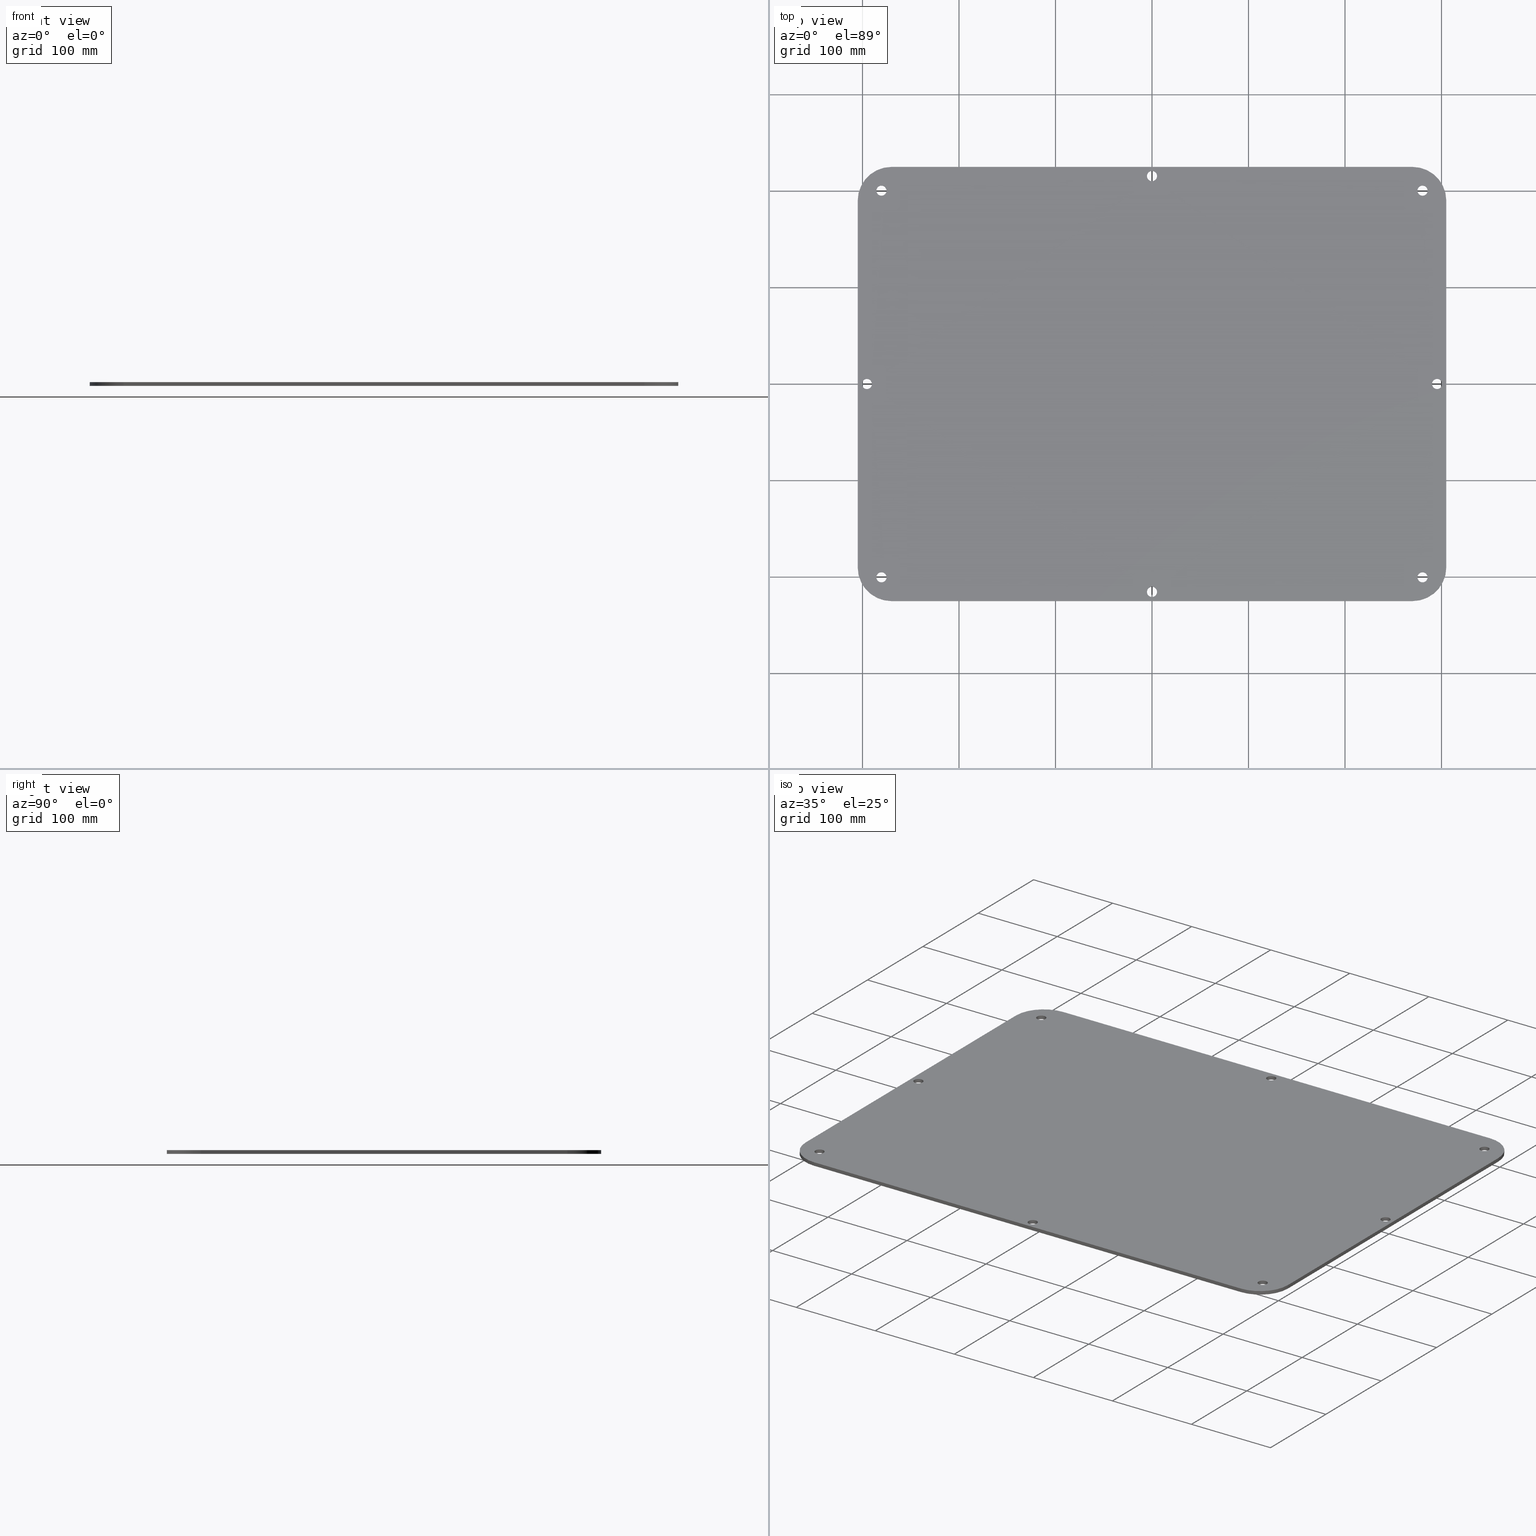
[diagram: canonical four-view strip — front | top / right | iso, engineering-drawing reading convention]
A machine part, canonical four-view strip (front | top / right | iso — engineering-drawing reading convention). The complete STEP part file that produces these views, byte-faithful:
ISO-10303-21;
HEADER;
/* Generated by software containing ST-Developer
 * from STEP Tools, Inc. (www.steptools.com) 
 */
/* OPTION: using custom schema-name function */

FILE_DESCRIPTION(
/* description */ (''),
/* implementation_level */ '2;1');

FILE_NAME(
/* name */ '70000',
/* time_stamp */ '2016-04-15T17:51:46+03:00',
/* author */ (''),
/* organization */ (''),
/* preprocessor_version */ 'ST-DEVELOPER v9',
/* originating_system */ 'UGS - NX 4.0',
/* authorisation */ '');

FILE_SCHEMA (('AUTOMOTIVE_DESIGN { 1 0 10303 214 1 1 1 1 }'));
ENDSEC;

DATA;
#10=SHAPE_REPRESENTATION_RELATIONSHIP('None',
'relationship between Form8D2Eoemi-None and Form8D2Eoemi-None',#22,#11);
#11=ADVANCED_BREP_SHAPE_REPRESENTATION('Form8D2Eoemi-None',(#32),#599);
#12=SHAPE_DEFINITION_REPRESENTATION(#13,#22);
#13=PRODUCT_DEFINITION_SHAPE('','',#14);
#14=PRODUCT_DEFINITION(' ','',#16,#15);
#15=PRODUCT_DEFINITION_CONTEXT('part definition',#21,'design');
#16=PRODUCT_DEFINITION_FORMATION_WITH_SPECIFIED_SOURCE(' ',' ',#18,.NOT_KNOWN.);
#17=PRODUCT_RELATED_PRODUCT_CATEGORY('part','',(#18));
#18=PRODUCT('Form8D2Eoemi','Form8D2Eoemi',' ',(#19));
#19=PRODUCT_CONTEXT(' ',#21,'mechanical');
#20=APPLICATION_PROTOCOL_DEFINITION('international standard',
'automotive_design',2001,#21);
#21=APPLICATION_CONTEXT(
'core data for automotive mechanical design processes');
#22=SHAPE_REPRESENTATION('Form8D2Eoemi-None',(#362),#599);
#23=PRESENTATION_LAYER_ASSIGNMENT('251','Layer 251',(#32));
#24=STYLED_ITEM('',(#25),#32);
#25=PRESENTATION_STYLE_ASSIGNMENT((#26));
#26=SURFACE_STYLE_USAGE(.BOTH.,#27);
#27=SURFACE_SIDE_STYLE('',(#28));
#28=SURFACE_STYLE_FILL_AREA(#29);
#29=FILL_AREA_STYLE('',(#30));
#30=FILL_AREA_STYLE_COLOUR('',#31);
#31=COLOUR_RGB('Light Gray',0.6,0.6,0.6);
#32=MANIFOLD_SOLID_BREP('',#33);
#33=CLOSED_SHELL('',(#72,#73,#74,#75,#76,#77,#78,#79,#80,#81,#82,#83,#84,
#85,#86,#87,#88,#89));
#34=FACE_BOUND('',#119,.T.);
#35=FACE_BOUND('',#120,.T.);
#36=FACE_BOUND('',#121,.T.);
#37=FACE_BOUND('',#122,.T.);
#38=FACE_BOUND('',#123,.T.);
#39=FACE_BOUND('',#124,.T.);
#40=FACE_BOUND('',#125,.T.);
#41=FACE_BOUND('',#126,.T.);
#42=FACE_BOUND('',#127,.T.);
#43=FACE_BOUND('',#128,.T.);
#44=FACE_BOUND('',#129,.T.);
#45=FACE_BOUND('',#130,.T.);
#46=FACE_BOUND('',#131,.T.);
#47=FACE_BOUND('',#132,.T.);
#48=FACE_BOUND('',#134,.T.);
#49=FACE_BOUND('',#135,.T.);
#50=FACE_BOUND('',#137,.T.);
#51=FACE_BOUND('',#138,.T.);
#52=FACE_BOUND('',#139,.T.);
#53=FACE_BOUND('',#140,.T.);
#54=FACE_BOUND('',#141,.T.);
#55=FACE_BOUND('',#142,.T.);
#56=FACE_BOUND('',#143,.T.);
#57=FACE_BOUND('',#144,.T.);
#58=FACE_BOUND('',#146,.T.);
#59=FACE_BOUND('',#147,.T.);
#60=FACE_BOUND('',#148,.T.);
#61=FACE_BOUND('',#149,.T.);
#62=FACE_BOUND('',#150,.T.);
#63=FACE_BOUND('',#151,.T.);
#64=FACE_BOUND('',#152,.T.);
#65=FACE_BOUND('',#153,.T.);
#66=PLANE('',#366);
#67=PLANE('',#370);
#68=PLANE('',#374);
#69=PLANE('',#399);
#70=PLANE('',#403);
#71=PLANE('',#404);
#72=ADVANCED_FACE('',(#102),#90,.T.);
#73=ADVANCED_FACE('',(#103),#66,.F.);
#74=ADVANCED_FACE('',(#104),#91,.T.);
#75=ADVANCED_FACE('',(#105),#67,.F.);
#76=ADVANCED_FACE('',(#106),#92,.T.);
#77=ADVANCED_FACE('',(#107),#68,.F.);
#78=ADVANCED_FACE('',(#108),#93,.T.);
#79=ADVANCED_FACE('',(#34,#35),#94,.F.);
#80=ADVANCED_FACE('',(#36,#37),#95,.F.);
#81=ADVANCED_FACE('',(#38,#39),#96,.F.);
#82=ADVANCED_FACE('',(#40,#41),#97,.F.);
#83=ADVANCED_FACE('',(#42,#43),#98,.F.);
#84=ADVANCED_FACE('',(#44,#45),#99,.F.);
#85=ADVANCED_FACE('',(#46,#47),#100,.F.);
#86=ADVANCED_FACE('',(#109),#69,.F.);
#87=ADVANCED_FACE('',(#48,#49),#101,.F.);
#88=ADVANCED_FACE('',(#110,#50,#51,#52,#53,#54,#55,#56,#57),#70,.T.);
#89=ADVANCED_FACE('',(#111,#58,#59,#60,#61,#62,#63,#64,#65),#71,.F.);
#90=CYLINDRICAL_SURFACE('',#365,35.);
#91=CYLINDRICAL_SURFACE('',#369,35.);
#92=CYLINDRICAL_SURFACE('',#373,35.);
#93=CYLINDRICAL_SURFACE('',#377,35.);
#94=CYLINDRICAL_SURFACE('',#380,5.25);
#95=CYLINDRICAL_SURFACE('',#383,5.25);
#96=CYLINDRICAL_SURFACE('',#386,5.25);
#97=CYLINDRICAL_SURFACE('',#389,5.25);
#98=CYLINDRICAL_SURFACE('',#392,5.25);
#99=CYLINDRICAL_SURFACE('',#395,5.25);
#100=CYLINDRICAL_SURFACE('',#398,5.25);
#101=CYLINDRICAL_SURFACE('',#402,5.25);
#102=FACE_OUTER_BOUND('',#112,.T.);
#103=FACE_OUTER_BOUND('',#113,.T.);
#104=FACE_OUTER_BOUND('',#114,.T.);
#105=FACE_OUTER_BOUND('',#115,.T.);
#106=FACE_OUTER_BOUND('',#116,.T.);
#107=FACE_OUTER_BOUND('',#117,.T.);
#108=FACE_OUTER_BOUND('',#118,.T.);
#109=FACE_OUTER_BOUND('',#133,.T.);
#110=FACE_OUTER_BOUND('',#136,.T.);
#111=FACE_OUTER_BOUND('',#145,.T.);
#112=EDGE_LOOP('',(#186,#187,#188,#189));
#113=EDGE_LOOP('',(#190,#191,#192,#193));
#114=EDGE_LOOP('',(#194,#195,#196,#197));
#115=EDGE_LOOP('',(#198,#199,#200,#201));
#116=EDGE_LOOP('',(#202,#203,#204,#205));
#117=EDGE_LOOP('',(#206,#207,#208,#209));
#118=EDGE_LOOP('',(#210,#211,#212,#213));
#119=EDGE_LOOP('',(#214));
#120=EDGE_LOOP('',(#215));
#121=EDGE_LOOP('',(#216));
#122=EDGE_LOOP('',(#217));
#123=EDGE_LOOP('',(#218));
#124=EDGE_LOOP('',(#219));
#125=EDGE_LOOP('',(#220));
#126=EDGE_LOOP('',(#221));
#127=EDGE_LOOP('',(#222));
#128=EDGE_LOOP('',(#223));
#129=EDGE_LOOP('',(#224));
#130=EDGE_LOOP('',(#225));
#131=EDGE_LOOP('',(#226));
#132=EDGE_LOOP('',(#227));
#133=EDGE_LOOP('',(#228,#229,#230,#231));
#134=EDGE_LOOP('',(#232));
#135=EDGE_LOOP('',(#233));
#136=EDGE_LOOP('',(#234,#235,#236,#237,#238,#239,#240,#241));
#137=EDGE_LOOP('',(#242));
#138=EDGE_LOOP('',(#243));
#139=EDGE_LOOP('',(#244));
#140=EDGE_LOOP('',(#245));
#141=EDGE_LOOP('',(#246));
#142=EDGE_LOOP('',(#247));
#143=EDGE_LOOP('',(#248));
#144=EDGE_LOOP('',(#249));
#145=EDGE_LOOP('',(#250,#251,#252,#253,#254,#255,#256,#257));
#146=EDGE_LOOP('',(#258));
#147=EDGE_LOOP('',(#259));
#148=EDGE_LOOP('',(#260));
#149=EDGE_LOOP('',(#261));
#150=EDGE_LOOP('',(#262));
#151=EDGE_LOOP('',(#263));
#152=EDGE_LOOP('',(#264));
#153=EDGE_LOOP('',(#265));
#154=LINE('',#511,#170);
#155=LINE('',#515,#171);
#156=LINE('',#517,#172);
#157=LINE('',#519,#173);
#158=LINE('',#521,#174);
#159=LINE('',#525,#175);
#160=LINE('',#529,#176);
#161=LINE('',#531,#177);
#162=LINE('',#533,#178);
#163=LINE('',#537,#179);
#164=LINE('',#541,#180);
#165=LINE('',#543,#181);
#166=LINE('',#545,#182);
#167=LINE('',#549,#183);
#168=LINE('',#588,#184);
#169=LINE('',#589,#185);
#170=VECTOR('',#409,1.);
#171=VECTOR('',#412,1.);
#172=VECTOR('',#415,1.);
#173=VECTOR('',#416,1.);
#174=VECTOR('',#417,1.);
#175=VECTOR('',#422,1.);
#176=VECTOR('',#427,1.);
#177=VECTOR('',#428,1.);
#178=VECTOR('',#429,1.);
#179=VECTOR('',#434,1.);
#180=VECTOR('',#439,1.);
#181=VECTOR('',#440,1.);
#182=VECTOR('',#441,1.);
#183=VECTOR('',#446,1.);
#184=VECTOR('',#493,1.);
#185=VECTOR('',#494,1.);
#186=ORIENTED_EDGE('',*,*,#298,.T.);
#187=ORIENTED_EDGE('',*,*,#299,.F.);
#188=ORIENTED_EDGE('',*,*,#300,.F.);
#189=ORIENTED_EDGE('',*,*,#301,.T.);
#190=ORIENTED_EDGE('',*,*,#302,.T.);
#191=ORIENTED_EDGE('',*,*,#303,.F.);
#192=ORIENTED_EDGE('',*,*,#304,.F.);
#193=ORIENTED_EDGE('',*,*,#299,.T.);
#194=ORIENTED_EDGE('',*,*,#305,.T.);
#195=ORIENTED_EDGE('',*,*,#306,.F.);
#196=ORIENTED_EDGE('',*,*,#307,.F.);
#197=ORIENTED_EDGE('',*,*,#303,.T.);
#198=ORIENTED_EDGE('',*,*,#308,.T.);
#199=ORIENTED_EDGE('',*,*,#309,.F.);
#200=ORIENTED_EDGE('',*,*,#310,.F.);
#201=ORIENTED_EDGE('',*,*,#306,.T.);
#202=ORIENTED_EDGE('',*,*,#311,.T.);
#203=ORIENTED_EDGE('',*,*,#312,.F.);
#204=ORIENTED_EDGE('',*,*,#313,.F.);
#205=ORIENTED_EDGE('',*,*,#309,.T.);
#206=ORIENTED_EDGE('',*,*,#314,.T.);
#207=ORIENTED_EDGE('',*,*,#315,.F.);
#208=ORIENTED_EDGE('',*,*,#316,.F.);
#209=ORIENTED_EDGE('',*,*,#312,.T.);
#210=ORIENTED_EDGE('',*,*,#317,.T.);
#211=ORIENTED_EDGE('',*,*,#318,.F.);
#212=ORIENTED_EDGE('',*,*,#319,.F.);
#213=ORIENTED_EDGE('',*,*,#315,.T.);
#214=ORIENTED_EDGE('',*,*,#320,.T.);
#215=ORIENTED_EDGE('',*,*,#321,.F.);
#216=ORIENTED_EDGE('',*,*,#322,.F.);
#217=ORIENTED_EDGE('',*,*,#323,.T.);
#218=ORIENTED_EDGE('',*,*,#324,.F.);
#219=ORIENTED_EDGE('',*,*,#325,.T.);
#220=ORIENTED_EDGE('',*,*,#326,.T.);
#221=ORIENTED_EDGE('',*,*,#327,.F.);
#222=ORIENTED_EDGE('',*,*,#328,.T.);
#223=ORIENTED_EDGE('',*,*,#329,.F.);
#224=ORIENTED_EDGE('',*,*,#330,.F.);
#225=ORIENTED_EDGE('',*,*,#331,.T.);
#226=ORIENTED_EDGE('',*,*,#332,.F.);
#227=ORIENTED_EDGE('',*,*,#333,.T.);
#228=ORIENTED_EDGE('',*,*,#334,.T.);
#229=ORIENTED_EDGE('',*,*,#301,.F.);
#230=ORIENTED_EDGE('',*,*,#335,.F.);
#231=ORIENTED_EDGE('',*,*,#318,.T.);
#232=ORIENTED_EDGE('',*,*,#336,.T.);
#233=ORIENTED_EDGE('',*,*,#337,.F.);
#234=ORIENTED_EDGE('',*,*,#300,.T.);
#235=ORIENTED_EDGE('',*,*,#304,.T.);
#236=ORIENTED_EDGE('',*,*,#307,.T.);
#237=ORIENTED_EDGE('',*,*,#310,.T.);
#238=ORIENTED_EDGE('',*,*,#313,.T.);
#239=ORIENTED_EDGE('',*,*,#316,.T.);
#240=ORIENTED_EDGE('',*,*,#319,.T.);
#241=ORIENTED_EDGE('',*,*,#335,.T.);
#242=ORIENTED_EDGE('',*,*,#332,.T.);
#243=ORIENTED_EDGE('',*,*,#330,.T.);
#244=ORIENTED_EDGE('',*,*,#328,.F.);
#245=ORIENTED_EDGE('',*,*,#326,.F.);
#246=ORIENTED_EDGE('',*,*,#324,.T.);
#247=ORIENTED_EDGE('',*,*,#322,.T.);
#248=ORIENTED_EDGE('',*,*,#320,.F.);
#249=ORIENTED_EDGE('',*,*,#336,.F.);
#250=ORIENTED_EDGE('',*,*,#298,.F.);
#251=ORIENTED_EDGE('',*,*,#334,.F.);
#252=ORIENTED_EDGE('',*,*,#317,.F.);
#253=ORIENTED_EDGE('',*,*,#314,.F.);
#254=ORIENTED_EDGE('',*,*,#311,.F.);
#255=ORIENTED_EDGE('',*,*,#308,.F.);
#256=ORIENTED_EDGE('',*,*,#305,.F.);
#257=ORIENTED_EDGE('',*,*,#302,.F.);
#258=ORIENTED_EDGE('',*,*,#333,.F.);
#259=ORIENTED_EDGE('',*,*,#331,.F.);
#260=ORIENTED_EDGE('',*,*,#329,.T.);
#261=ORIENTED_EDGE('',*,*,#327,.T.);
#262=ORIENTED_EDGE('',*,*,#325,.F.);
#263=ORIENTED_EDGE('',*,*,#323,.F.);
#264=ORIENTED_EDGE('',*,*,#321,.T.);
#265=ORIENTED_EDGE('',*,*,#337,.T.);
#266=VERTEX_POINT('',#509);
#267=VERTEX_POINT('',#510);
#268=VERTEX_POINT('',#512);
#269=VERTEX_POINT('',#514);
#270=VERTEX_POINT('',#518);
#271=VERTEX_POINT('',#520);
#272=VERTEX_POINT('',#524);
#273=VERTEX_POINT('',#526);
#274=VERTEX_POINT('',#530);
#275=VERTEX_POINT('',#532);
#276=VERTEX_POINT('',#536);
#277=VERTEX_POINT('',#538);
#278=VERTEX_POINT('',#542);
#279=VERTEX_POINT('',#544);
#280=VERTEX_POINT('',#548);
#281=VERTEX_POINT('',#550);
#282=VERTEX_POINT('',#554);
#283=VERTEX_POINT('',#556);
#284=VERTEX_POINT('',#559);
#285=VERTEX_POINT('',#561);
#286=VERTEX_POINT('',#564);
#287=VERTEX_POINT('',#566);
#288=VERTEX_POINT('',#569);
#289=VERTEX_POINT('',#571);
#290=VERTEX_POINT('',#574);
#291=VERTEX_POINT('',#576);
#292=VERTEX_POINT('',#579);
#293=VERTEX_POINT('',#581);
#294=VERTEX_POINT('',#584);
#295=VERTEX_POINT('',#586);
#296=VERTEX_POINT('',#592);
#297=VERTEX_POINT('',#594);
#298=EDGE_CURVE('',#266,#267,#338,.T.);
#299=EDGE_CURVE('',#268,#267,#154,.T.);
#300=EDGE_CURVE('',#269,#268,#339,.T.);
#301=EDGE_CURVE('',#269,#266,#155,.T.);
#302=EDGE_CURVE('',#267,#270,#156,.T.);
#303=EDGE_CURVE('',#271,#270,#157,.T.);
#304=EDGE_CURVE('',#268,#271,#158,.T.);
#305=EDGE_CURVE('',#270,#272,#340,.T.);
#306=EDGE_CURVE('',#273,#272,#159,.T.);
#307=EDGE_CURVE('',#271,#273,#341,.T.);
#308=EDGE_CURVE('',#272,#274,#160,.T.);
#309=EDGE_CURVE('',#275,#274,#161,.T.);
#310=EDGE_CURVE('',#273,#275,#162,.T.);
#311=EDGE_CURVE('',#274,#276,#342,.T.);
#312=EDGE_CURVE('',#277,#276,#163,.T.);
#313=EDGE_CURVE('',#275,#277,#343,.T.);
#314=EDGE_CURVE('',#276,#278,#164,.T.);
#315=EDGE_CURVE('',#279,#278,#165,.T.);
#316=EDGE_CURVE('',#277,#279,#166,.T.);
#317=EDGE_CURVE('',#278,#280,#344,.T.);
#318=EDGE_CURVE('',#281,#280,#167,.T.);
#319=EDGE_CURVE('',#279,#281,#345,.T.);
#320=EDGE_CURVE('',#282,#282,#346,.T.);
#321=EDGE_CURVE('',#283,#283,#347,.T.);
#322=EDGE_CURVE('',#284,#284,#348,.T.);
#323=EDGE_CURVE('',#285,#285,#349,.T.);
#324=EDGE_CURVE('',#286,#286,#350,.T.);
#325=EDGE_CURVE('',#287,#287,#351,.T.);
#326=EDGE_CURVE('',#288,#288,#352,.T.);
#327=EDGE_CURVE('',#289,#289,#353,.T.);
#328=EDGE_CURVE('',#290,#290,#354,.T.);
#329=EDGE_CURVE('',#291,#291,#355,.T.);
#330=EDGE_CURVE('',#292,#292,#356,.T.);
#331=EDGE_CURVE('',#293,#293,#357,.T.);
#332=EDGE_CURVE('',#294,#294,#358,.T.);
#333=EDGE_CURVE('',#295,#295,#359,.T.);
#334=EDGE_CURVE('',#280,#266,#168,.T.);
#335=EDGE_CURVE('',#281,#269,#169,.T.);
#336=EDGE_CURVE('',#296,#296,#360,.T.);
#337=EDGE_CURVE('',#297,#297,#361,.T.);
#338=CIRCLE('',#363,35.);
#339=CIRCLE('',#364,35.);
#340=CIRCLE('',#367,35.);
#341=CIRCLE('',#368,35.);
#342=CIRCLE('',#371,35.);
#343=CIRCLE('',#372,35.);
#344=CIRCLE('',#375,35.);
#345=CIRCLE('',#376,35.);
#346=CIRCLE('',#378,5.25);
#347=CIRCLE('',#379,5.25);
#348=CIRCLE('',#381,5.25);
#349=CIRCLE('',#382,5.25);
#350=CIRCLE('',#384,5.25);
#351=CIRCLE('',#385,5.25);
#352=CIRCLE('',#387,5.25);
#353=CIRCLE('',#388,5.25);
#354=CIRCLE('',#390,5.25);
#355=CIRCLE('',#391,5.25);
#356=CIRCLE('',#393,5.25);
#357=CIRCLE('',#394,5.25);
#358=CIRCLE('',#396,5.25);
#359=CIRCLE('',#397,5.25);
#360=CIRCLE('',#400,5.25);
#361=CIRCLE('',#401,5.25);
#362=AXIS2_PLACEMENT_3D('',#507,#405,#406);
#363=AXIS2_PLACEMENT_3D('',#508,#407,#408);
#364=AXIS2_PLACEMENT_3D('',#513,#410,#411);
#365=AXIS2_PLACEMENT_3D('',#516,#413,#414);
#366=AXIS2_PLACEMENT_3D('',#522,#418,#419);
#367=AXIS2_PLACEMENT_3D('',#523,#420,#421);
#368=AXIS2_PLACEMENT_3D('',#527,#423,#424);
#369=AXIS2_PLACEMENT_3D('',#528,#425,#426);
#370=AXIS2_PLACEMENT_3D('',#534,#430,#431);
#371=AXIS2_PLACEMENT_3D('',#535,#432,#433);
#372=AXIS2_PLACEMENT_3D('',#539,#435,#436);
#373=AXIS2_PLACEMENT_3D('',#540,#437,#438);
#374=AXIS2_PLACEMENT_3D('',#546,#442,#443);
#375=AXIS2_PLACEMENT_3D('',#547,#444,#445);
#376=AXIS2_PLACEMENT_3D('',#551,#447,#448);
#377=AXIS2_PLACEMENT_3D('',#552,#449,#450);
#378=AXIS2_PLACEMENT_3D('',#553,#451,#452);
#379=AXIS2_PLACEMENT_3D('',#555,#453,#454);
#380=AXIS2_PLACEMENT_3D('',#557,#455,#456);
#381=AXIS2_PLACEMENT_3D('',#558,#457,#458);
#382=AXIS2_PLACEMENT_3D('',#560,#459,#460);
#383=AXIS2_PLACEMENT_3D('',#562,#461,#462);
#384=AXIS2_PLACEMENT_3D('',#563,#463,#464);
#385=AXIS2_PLACEMENT_3D('',#565,#465,#466);
#386=AXIS2_PLACEMENT_3D('',#567,#467,#468);
#387=AXIS2_PLACEMENT_3D('',#568,#469,#470);
#388=AXIS2_PLACEMENT_3D('',#570,#471,#472);
#389=AXIS2_PLACEMENT_3D('',#572,#473,#474);
#390=AXIS2_PLACEMENT_3D('',#573,#475,#476);
#391=AXIS2_PLACEMENT_3D('',#575,#477,#478);
#392=AXIS2_PLACEMENT_3D('',#577,#479,#480);
#393=AXIS2_PLACEMENT_3D('',#578,#481,#482);
#394=AXIS2_PLACEMENT_3D('',#580,#483,#484);
#395=AXIS2_PLACEMENT_3D('',#582,#485,#486);
#396=AXIS2_PLACEMENT_3D('',#583,#487,#488);
#397=AXIS2_PLACEMENT_3D('',#585,#489,#490);
#398=AXIS2_PLACEMENT_3D('',#587,#491,#492);
#399=AXIS2_PLACEMENT_3D('',#590,#495,#496);
#400=AXIS2_PLACEMENT_3D('',#591,#497,#498);
#401=AXIS2_PLACEMENT_3D('',#593,#499,#500);
#402=AXIS2_PLACEMENT_3D('',#595,#501,#502);
#403=AXIS2_PLACEMENT_3D('',#596,#503,#504);
#404=AXIS2_PLACEMENT_3D('',#597,#505,#506);
#405=DIRECTION('',(0.,0.,1.));
#406=DIRECTION('',(1.,0.,0.));
#407=DIRECTION('',(0.,0.,1.));
#408=DIRECTION('',(1.,0.,0.));
#409=DIRECTION('',(0.,0.,-1.));
#410=DIRECTION('',(0.,0.,1.));
#411=DIRECTION('',(1.,0.,0.));
#412=DIRECTION('',(0.,0.,-1.));
#413=DIRECTION('',(0.,0.,-1.));
#414=DIRECTION('',(-1.,0.,0.));
#415=DIRECTION('',(1.,0.,0.));
#416=DIRECTION('',(0.,0.,-1.));
#417=DIRECTION('',(1.,0.,0.));
#418=DIRECTION('',(0.,1.,0.));
#419=DIRECTION('',(0.,0.,1.));
#420=DIRECTION('',(0.,0.,1.));
#421=DIRECTION('',(0.999999999999998,0.,0.));
#422=DIRECTION('',(0.,0.,-1.));
#423=DIRECTION('',(0.,0.,1.));
#424=DIRECTION('',(0.999999999999998,0.,0.));
#425=DIRECTION('',(0.,0.,-1.));
#426=DIRECTION('',(-0.999999999999998,0.,0.));
#427=DIRECTION('',(0.,1.,0.));
#428=DIRECTION('',(0.,0.,-1.));
#429=DIRECTION('',(0.,1.,0.));
#430=DIRECTION('',(-1.,0.,0.));
#431=DIRECTION('',(0.,0.,1.));
#432=DIRECTION('',(0.,0.,1.));
#433=DIRECTION('',(0.999999999999998,0.,0.));
#434=DIRECTION('',(0.,0.,-1.));
#435=DIRECTION('',(0.,0.,1.));
#436=DIRECTION('',(0.999999999999998,0.,0.));
#437=DIRECTION('',(0.,0.,-1.));
#438=DIRECTION('',(-0.999999999999998,0.,0.));
#439=DIRECTION('',(-1.,0.,0.));
#440=DIRECTION('',(0.,0.,-1.));
#441=DIRECTION('',(-1.,0.,0.));
#442=DIRECTION('',(0.,-1.,0.));
#443=DIRECTION('',(0.,0.,-1.));
#444=DIRECTION('',(0.,0.,1.));
#445=DIRECTION('',(1.,0.,0.));
#446=DIRECTION('',(0.,0.,-1.));
#447=DIRECTION('',(0.,0.,1.));
#448=DIRECTION('',(1.,0.,0.));
#449=DIRECTION('',(0.,0.,-1.));
#450=DIRECTION('',(-1.,0.,0.));
#451=DIRECTION('',(0.,0.,1.));
#452=DIRECTION('',(-0.999999999999996,0.,0.));
#453=DIRECTION('',(0.,0.,1.));
#454=DIRECTION('',(-0.999999999999996,0.,0.));
#455=DIRECTION('',(0.,0.,-1.));
#456=DIRECTION('',(-0.999999999999996,0.,0.));
#457=DIRECTION('',(0.,0.,-1.));
#458=DIRECTION('',(0.999999999999996,0.,0.));
#459=DIRECTION('',(0.,0.,-1.));
#460=DIRECTION('',(0.999999999999996,0.,0.));
#461=DIRECTION('',(0.,0.,-1.));
#462=DIRECTION('',(-0.999999999999996,0.,0.));
#463=DIRECTION('',(0.,0.,-1.));
#464=DIRECTION('',(-0.707106781186541,-0.707106781186541,0.));
#465=DIRECTION('',(0.,0.,-1.));
#466=DIRECTION('',(-0.707106781186541,-0.707106781186541,0.));
#467=DIRECTION('',(0.,0.,-1.));
#468=DIRECTION('',(-0.999999999999996,0.,0.));
#469=DIRECTION('',(0.,0.,1.));
#470=DIRECTION('',(0.999999999999996,0.,0.));
#471=DIRECTION('',(0.,0.,1.));
#472=DIRECTION('',(0.999999999999996,0.,0.));
#473=DIRECTION('',(0.,0.,-1.));
#474=DIRECTION('',(-0.999999999999996,0.,0.));
#475=DIRECTION('',(0.,0.,1.));
#476=DIRECTION('',(0.999999999999996,0.,0.));
#477=DIRECTION('',(0.,0.,1.));
#478=DIRECTION('',(0.999999999999996,0.,0.));
#479=DIRECTION('',(0.,0.,-1.));
#480=DIRECTION('',(-0.999999999999996,0.,0.));
#481=DIRECTION('',(0.,0.,-1.));
#482=DIRECTION('',(-0.999999999999996,0.,0.));
#483=DIRECTION('',(0.,0.,-1.));
#484=DIRECTION('',(-0.999999999999996,0.,0.));
#485=DIRECTION('',(0.,0.,-1.));
#486=DIRECTION('',(-0.999999999999996,0.,0.));
#487=DIRECTION('',(0.,0.,-1.));
#488=DIRECTION('',(0.999999999999996,0.,0.));
#489=DIRECTION('',(0.,0.,-1.));
#490=DIRECTION('',(0.999999999999996,0.,0.));
#491=DIRECTION('',(0.,0.,-1.));
#492=DIRECTION('',(-0.999999999999996,0.,0.));
#493=DIRECTION('',(0.,-1.,0.));
#494=DIRECTION('',(0.,-1.,0.));
#495=DIRECTION('',(1.,0.,0.));
#496=DIRECTION('',(0.,0.,-1.));
#497=DIRECTION('',(0.,0.,1.));
#498=DIRECTION('',(0.999999999999996,0.,0.));
#499=DIRECTION('',(0.,0.,1.));
#500=DIRECTION('',(0.999999999999996,0.,0.));
#501=DIRECTION('',(0.,0.,-1.));
#502=DIRECTION('',(-0.999999999999996,0.,0.));
#503=DIRECTION('',(0.,0.,1.));
#504=DIRECTION('',(1.,0.,0.));
#505=DIRECTION('',(0.,0.,1.));
#506=DIRECTION('',(1.,0.,0.));
#507=CARTESIAN_POINT('',(0.,0.,0.));
#508=CARTESIAN_POINT('',(730.,-2690.,0.));
#509=CARTESIAN_POINT('',(695.,-2690.,0.));
#510=CARTESIAN_POINT('',(730.,-2725.,0.));
#511=CARTESIAN_POINT('',(730.,-2725.,4.));
#512=CARTESIAN_POINT('',(730.,-2725.,4.));
#513=CARTESIAN_POINT('',(730.,-2690.,4.));
#514=CARTESIAN_POINT('',(695.,-2690.,4.));
#515=CARTESIAN_POINT('',(695.,-2690.,4.));
#516=CARTESIAN_POINT('',(730.,-2690.,4.));
#517=CARTESIAN_POINT('',(730.,-2725.,0.));
#518=CARTESIAN_POINT('',(1270.,-2725.,0.));
#519=CARTESIAN_POINT('',(1270.,-2725.,4.));
#520=CARTESIAN_POINT('',(1270.,-2725.,4.));
#521=CARTESIAN_POINT('',(730.,-2725.,4.));
#522=CARTESIAN_POINT('',(730.,-2725.,4.));
#523=CARTESIAN_POINT('',(1270.,-2690.,0.));
#524=CARTESIAN_POINT('',(1305.,-2690.,0.));
#525=CARTESIAN_POINT('',(1305.,-2690.,4.));
#526=CARTESIAN_POINT('',(1305.,-2690.,4.));
#527=CARTESIAN_POINT('',(1270.,-2690.,4.));
#528=CARTESIAN_POINT('',(1270.,-2690.,4.));
#529=CARTESIAN_POINT('',(1305.,-2690.,0.));
#530=CARTESIAN_POINT('',(1305.,-2310.,0.));
#531=CARTESIAN_POINT('',(1305.,-2310.,4.));
#532=CARTESIAN_POINT('',(1305.,-2310.,4.));
#533=CARTESIAN_POINT('',(1305.,-2690.,4.));
#534=CARTESIAN_POINT('',(1305.,-2690.,4.));
#535=CARTESIAN_POINT('',(1270.,-2310.,0.));
#536=CARTESIAN_POINT('',(1270.,-2275.,0.));
#537=CARTESIAN_POINT('',(1270.,-2275.,4.));
#538=CARTESIAN_POINT('',(1270.,-2275.,4.));
#539=CARTESIAN_POINT('',(1270.,-2310.,4.));
#540=CARTESIAN_POINT('',(1270.,-2310.,4.));
#541=CARTESIAN_POINT('',(1270.,-2275.,0.));
#542=CARTESIAN_POINT('',(730.,-2275.,0.));
#543=CARTESIAN_POINT('',(730.,-2275.,4.));
#544=CARTESIAN_POINT('',(730.,-2275.,4.));
#545=CARTESIAN_POINT('',(1270.,-2275.,4.));
#546=CARTESIAN_POINT('',(1270.,-2275.,4.));
#547=CARTESIAN_POINT('',(730.,-2310.,0.));
#548=CARTESIAN_POINT('',(695.,-2310.,0.));
#549=CARTESIAN_POINT('',(695.,-2310.,4.));
#550=CARTESIAN_POINT('',(695.,-2310.,4.));
#551=CARTESIAN_POINT('',(730.,-2310.,4.));
#552=CARTESIAN_POINT('',(730.,-2310.,4.));
#553=CARTESIAN_POINT('',(1280.37005768509,-2700.37005768509,4.));
#554=CARTESIAN_POINT('',(1275.12005768509,-2700.37005768509,4.));
#555=CARTESIAN_POINT('',(1280.37005768509,-2700.37005768509,0.));
#556=CARTESIAN_POINT('',(1275.12005768509,-2700.37005768509,0.));
#557=CARTESIAN_POINT('',(1280.37005768509,-2700.37005768509,4.));
#558=CARTESIAN_POINT('',(1000.,-2715.5,4.));
#559=CARTESIAN_POINT('',(1005.25,-2715.5,4.));
#560=CARTESIAN_POINT('',(1000.,-2715.5,0.));
#561=CARTESIAN_POINT('',(1005.25,-2715.5,0.));
#562=CARTESIAN_POINT('',(1000.,-2715.5,4.));
#563=CARTESIAN_POINT('',(1280.37005768509,-2299.62994231491,4.));
#564=CARTESIAN_POINT('',(1276.65774708386,-2303.34225291614,4.));
#565=CARTESIAN_POINT('',(1280.37005768509,-2299.62994231491,0.));
#566=CARTESIAN_POINT('',(1276.65774708386,-2303.34225291614,0.));
#567=CARTESIAN_POINT('',(1280.37005768509,-2299.62994231491,4.));
#568=CARTESIAN_POINT('',(704.5,-2500.,4.));
#569=CARTESIAN_POINT('',(709.75,-2500.,4.));
#570=CARTESIAN_POINT('',(704.5,-2500.,0.));
#571=CARTESIAN_POINT('',(709.75,-2500.,0.));
#572=CARTESIAN_POINT('',(704.5,-2500.,4.));
#573=CARTESIAN_POINT('',(719.629942314911,-2299.62994231491,4.));
#574=CARTESIAN_POINT('',(724.879942314911,-2299.62994231491,4.));
#575=CARTESIAN_POINT('',(719.629942314911,-2299.62994231491,0.));
#576=CARTESIAN_POINT('',(724.879942314911,-2299.62994231491,0.));
#577=CARTESIAN_POINT('',(719.629942314911,-2299.62994231491,4.));
#578=CARTESIAN_POINT('',(1295.5,-2500.,4.));
#579=CARTESIAN_POINT('',(1290.25,-2500.,4.));
#580=CARTESIAN_POINT('',(1295.5,-2500.,0.));
#581=CARTESIAN_POINT('',(1290.25,-2500.,0.));
#582=CARTESIAN_POINT('',(1295.5,-2500.,4.));
#583=CARTESIAN_POINT('',(719.629942314911,-2700.37005768509,4.));
#584=CARTESIAN_POINT('',(724.879942314911,-2700.37005768509,4.));
#585=CARTESIAN_POINT('',(719.629942314911,-2700.37005768509,0.));
#586=CARTESIAN_POINT('',(724.879942314911,-2700.37005768509,0.));
#587=CARTESIAN_POINT('',(719.629942314911,-2700.37005768509,4.));
#588=CARTESIAN_POINT('',(695.,-2310.,0.));
#589=CARTESIAN_POINT('',(695.,-2310.,4.));
#590=CARTESIAN_POINT('',(695.,-2310.,4.));
#591=CARTESIAN_POINT('',(1000.,-2284.5,4.));
#592=CARTESIAN_POINT('',(1005.25,-2284.5,4.));
#593=CARTESIAN_POINT('',(1000.,-2284.5,0.));
#594=CARTESIAN_POINT('',(1005.25,-2284.5,0.));
#595=CARTESIAN_POINT('',(1000.,-2284.5,4.));
#596=CARTESIAN_POINT('',(730.,-2690.,4.));
#597=CARTESIAN_POINT('',(730.,-2690.,0.));
#598=MECHANICAL_DESIGN_GEOMETRIC_PRESENTATION_REPRESENTATION('',(#24),#599);
#599=(
GEOMETRIC_REPRESENTATION_CONTEXT(3)
GLOBAL_UNCERTAINTY_ASSIGNED_CONTEXT((#600))
GLOBAL_UNIT_ASSIGNED_CONTEXT((#606,#602,#601))
REPRESENTATION_CONTEXT('70000','TOP_LEVEL_ASSEMBLY_PART')
);
#600=UNCERTAINTY_MEASURE_WITH_UNIT(LENGTH_MEASURE(2.E-005),#606,
'DISTANCE_ACCURACY_VALUE','Maximum Tolerance applied to model');
#601=(
NAMED_UNIT(*)
SI_UNIT($,.STERADIAN.)
SOLID_ANGLE_UNIT()
);
#602=(
CONVERSION_BASED_UNIT('DEGREE',#604)
NAMED_UNIT(#603)
PLANE_ANGLE_UNIT()
);
#603=DIMENSIONAL_EXPONENTS(0.,0.,0.,0.,0.,0.,0.);
#604=PLANE_ANGLE_MEASURE_WITH_UNIT(PLANE_ANGLE_MEASURE(0.0174532925),#605);
#605=(
NAMED_UNIT(*)
PLANE_ANGLE_UNIT()
SI_UNIT($,.RADIAN.)
);
#606=(
LENGTH_UNIT()
NAMED_UNIT(*)
SI_UNIT(.MILLI.,.METRE.)
);
ENDSEC;
END-ISO-10303-21;
